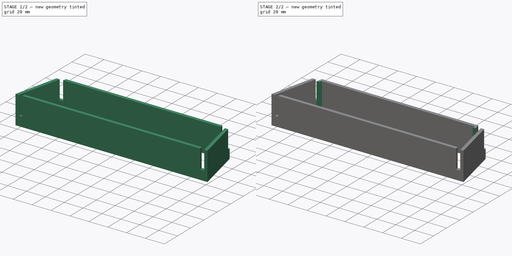
[diagram: build sequence overview — one tinted view per stage of 2, left to right]
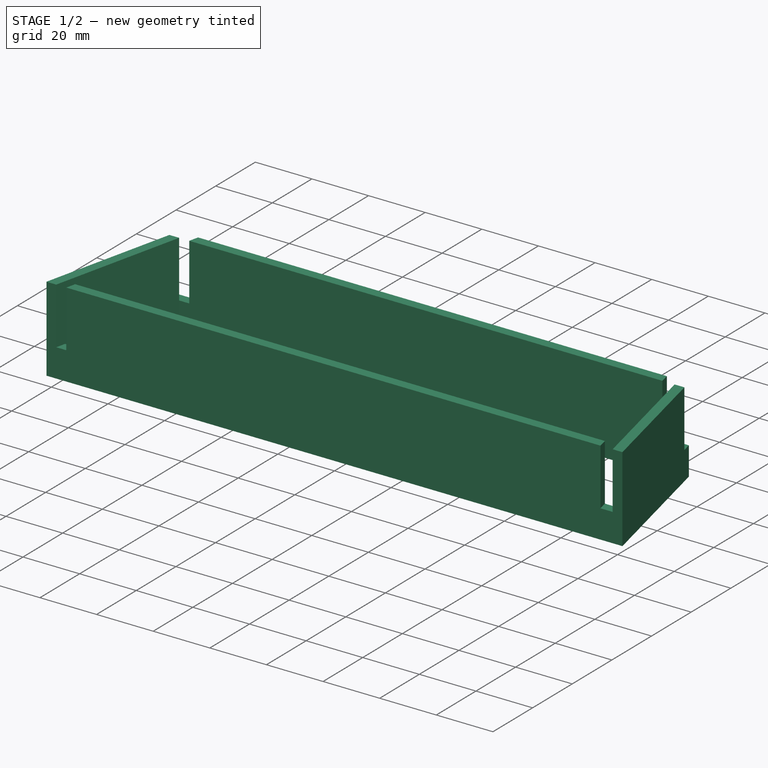
[diagram: stage 1 of 2 — iso view after this stage's code; geometry added in this stage tinted green]
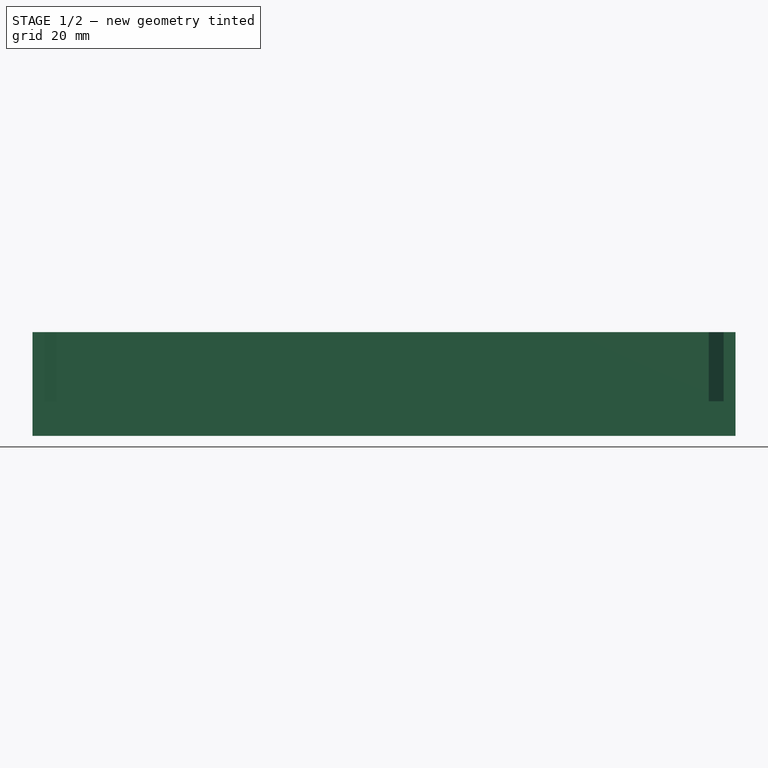
[diagram: stage 1 of 2 — front view after this stage's code; geometry added in this stage tinted green]
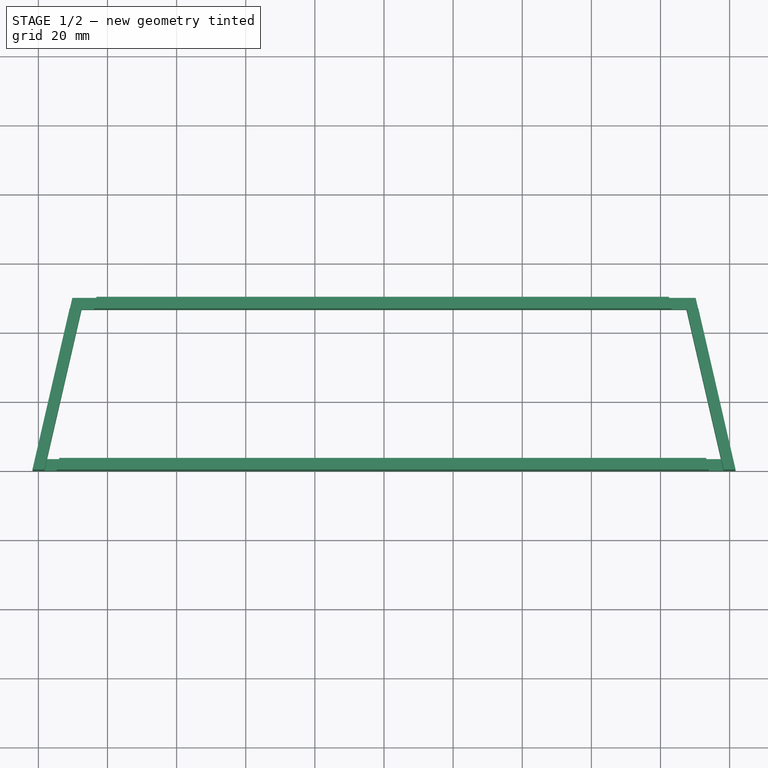
[diagram: stage 1 of 2 — top view after this stage's code; geometry added in this stage tinted green]
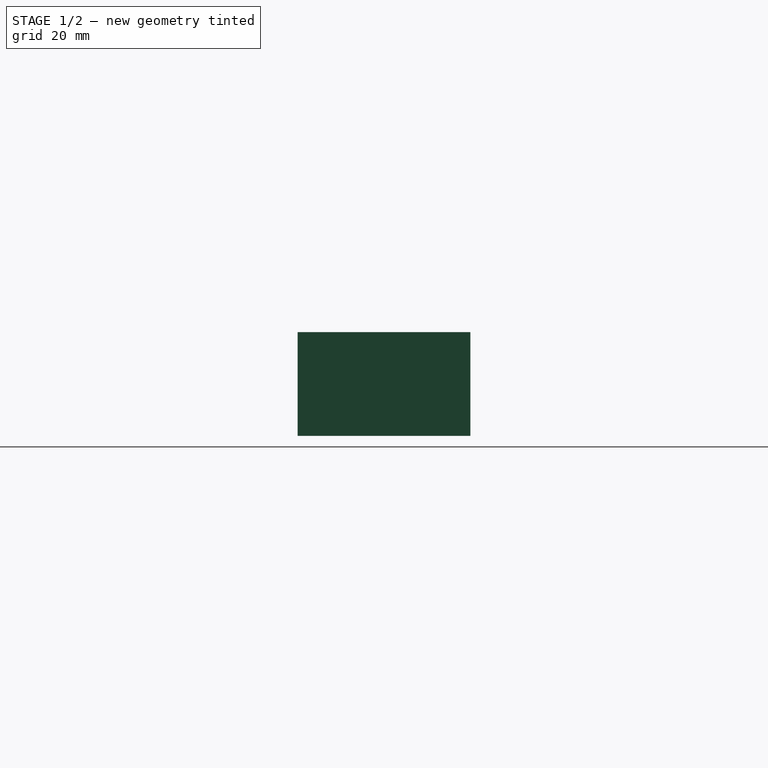
[diagram: stage 1 of 2 — right view after this stage's code; geometry added in this stage tinted green]
FCSTD DOCUMENT  (FreeCAD 1.0R39285 (Git))
Label: split-keyboard-stand-clip
License: All rights reserved
LicenseURL: https://en.wikipedia.org/wiki/All_rights_reserved
objects: Sketcher::SketchObject×3, PartDesign::Pad×2, App::VarSet×1, PartDesign::Pocket×1, PartDesign::Body×1
note: 16 computed .brp shape members not serialized (recipe doc carries the construction recipe); baked Part::Feature solids carry a one-line shape summary decoded from their .brp

FEATURE [App::VarSet] VarSet
  Base_Angle = 77
  Base_BackThickness = 10
  Base_Distance = 190
  Base_Height = 50
  Base_StandThickness = 3.36
  Base_Tolerance = 0.1
  Base_Width = 30
FEATURE [Sketcher::SketchObject] Sketch
  ArcFitTolerance = 1e-06
  AttachmentSupport = -> [XY_Plane]
  FullyConstrained = true
  MakeInternals = false
  MapMode = 5
  expr: Constraints[21] = VarSet.Base_StandThickness * 2
  expr: Constraints[25] = VarSet.Base_StandThickness * 2
  expr: Constraints[26] = VarSet.Base_StandThickness
  expr: Constraints[27] = VarSet.Base_StandThickness
  expr: Constraints[2] = VarSet.Base_Distance + VarSet.Base_StandThickness * 6
  expr: Constraints[4] = VarSet.Base_Height
  expr: Constraints[9] = VarSet.Base_Angle
  sketch-geometry (10):
    g0: LineSegment StartX=-105.08 StartY=0 StartZ=0 EndX=105.08 EndY=0 EndZ=0
    g1: LineSegment StartX=-93.5366 StartY=50 StartZ=0 EndX=93.5366 EndY=50 EndZ=0
    g2: LineSegment StartX=105.08 StartY=0 StartZ=0 EndX=93.5366 EndY=50 EndZ=0
    g3: LineSegment StartX=-93.5366 StartY=50 StartZ=0 EndX=-105.08 EndY=0 EndZ=0
    g4: LineSegment StartX=-87.4155 StartY=46.64 StartZ=0 EndX=87.4155 EndY=46.64 EndZ=0
    g5: LineSegment StartX=-97.4075 StartY=3.36 StartZ=0 EndX=97.4075 EndY=3.36 EndZ=0
    g6: LineSegment StartX=87.4155 StartY=46.64 StartZ=0 EndX=97.4075 EndY=3.36 EndZ=0
    g7: LineSegment StartX=-87.4155 StartY=46.64 StartZ=0 EndX=-97.4075 EndY=3.36 EndZ=0
    g8: LineSegment [constr] StartX=87.4155 StartY=46.64 StartZ=0 EndX=93.9633 EndY=48.1517 EndZ=0
    g9: LineSegment [constr] StartX=-87.4155 StartY=46.64 StartZ=0 EndX=-93.9633 EndY=48.1517 EndZ=0
  constraints (28):
    c: PointOnObject(g0,g-1)
    c: Symmetric(g0,g0,g-1)
    c: DistanceX(g0,g0) = 210.16
    c: Symmetric(g1,g1,g-2)
    c: Distance(g0,g1) = 50
    c: Coincident(g2,g0)
    c: Coincident(g2,g1)
    c: Coincident(g3,g1)
    c: Coincident(g3,g0)
    c: Angle(g0,g3) = 1.3439
    c: Horizontal(g4)
    c: Horizontal(g5)
    c: Coincident(g6,g4)
    c: Coincident(g6,g5)
    c: Coincident(g7,g4)
    c: Coincident(g7,g5)
    c: Parallel(g6,g2)
    c: Parallel(g7,g3)
    c: Coincident(g8,g4)
    c: PointOnObject(g8,g2)
    c: Perpendicular(g2,g8)
    c: Distance(g8,g8) = 6.72
    c: Coincident(g9,g4)
    c: PointOnObject(g9,g3)
    c: Perpendicular(g3,g9)
    c: Distance(g9,g9) = 6.72
    c: Distance(g4,g1) = 3.36
    c: Distance(g0,g5) = 3.36
FEATURE [PartDesign::Pad] Pad
  Direction = (0,0,1)
  Length = 30
  Length2 = 10
  Profile = -> Sketch
  ReferenceAxis = -> Sketch [N_Axis]
  Refine = true
  Suppressed = false
  Type = 0
FEATURE [Sketcher::SketchObject] Sketch001
  ArcFitTolerance = 1e-06
  AttachmentSupport = -> [Pad]
  ExternalGeometry = -> [Pad]
  FullyConstrained = false
  MakeInternals = false
  MapMode = 5
  Placement = pos=(0,0,30) rot=(0,0,1;0rad)
  expr: Constraints[11] = VarSet.Base_StandThickness + VarSet.Base_Tolerance
  expr: Constraints[12] = VarSet.Base_StandThickness + VarSet.Base_Tolerance
  sketch-geometry (16):
    g0: LineSegment StartX=-94.7206 StartY=0 StartZ=0 EndX=-83.1772 EndY=50 EndZ=0
    g1: LineSegment StartX=82.4166 StartY=50 StartZ=0 EndX=93.96 EndY=0 EndZ=0
    g2: LineSegment StartX=-86.7282 StartY=50 StartZ=0 EndX=-83.1772 EndY=50 EndZ=0
    g3: LineSegment StartX=-98.273 StartY=-0.00607872 StartZ=0 EndX=-94.7206 EndY=0 EndZ=0
    g4: LineSegment StartX=-87.5039 StartY=46.64 StartZ=0 EndX=-98.273 EndY=-0.00607872 EndZ=0
    g5: LineSegment [constr] StartX=-88.9489 StartY=25 StartZ=0 EndX=-92.3202 EndY=25.7783 EndZ=0
    g6: LineSegment [constr] StartX=88.1883 StartY=25 StartZ=0 EndX=91.5596 EndY=25.7783 EndZ=0
    g7: GeomPoint X=-87.5039 Y=46.64 Z=0
    g8: LineSegment StartX=-86.7282 StartY=50 StartZ=0 EndX=-90.1766 EndY=50 EndZ=0
    g9: LineSegment StartX=-87.5039 StartY=46.64 StartZ=0 EndX=-90.9523 EndY=46.64 EndZ=0
    g10: LineSegment StartX=-90.9523 StartY=46.64 StartZ=0 EndX=-90.1766 EndY=50 EndZ=0
    g11: LineSegment StartX=82.4166 StartY=50 StartZ=0 EndX=90.1766 EndY=50 EndZ=0
    g12: LineSegment StartX=87.5039 StartY=46.64 StartZ=0 EndX=90.9523 EndY=46.64 EndZ=0
    g13: LineSegment StartX=90.1766 StartY=50 StartZ=0 EndX=90.9523 EndY=46.64 EndZ=0
    g14: LineSegment StartX=87.5039 StartY=46.64 StartZ=0 EndX=98.2716 EndY=0 EndZ=0
    g15: LineSegment StartX=98.2716 StartY=0 StartZ=0 EndX=93.96 EndY=0 EndZ=0
  constraints (41):
    c: PointOnObject(g0,g-3)
    c: Coincident(g2,g0)
    c: Coincident(g3,g0)
    c: PointOnObject(g2,g-4)
    c: PointOnObject(g3,g-4)
    c: PointOnObject(g2,g-3)
    c: Symmetric(g0,g0,g5)
    c: PointOnObject(g5,g4)
    c: Perpendicular(g0,g5)
    c: Symmetric(g1,g1,g6)
    c: Perpendicular(g1,g6)
    c: Distance(g5,g5) = 3.46
    c: Distance(g6,g6) = 3.46
    c: Parallel(g4,g0)
    c: Coincident(g7,g-4)
    c: Coincident(g8,g2)
    c: Coincident(g8,g-6)
    c: Coincident(g9,g7)
    c: PointOnObject(g9,g-6)
    c: Horizontal(g9)
    c: Coincident(g10,g9)
    c: Coincident(g10,g8)
    c: Coincident(g4,g3)
    c: Coincident(g7,g4)
    c: DistanceX(g1,g-7) = 7.76
    c: DistanceX(g1,g-7) = 7.76
    c: Coincident(g11,g1)
    c: Coincident(g11,g-7)
    c: Horizontal(g11)
    c: Coincident(g12,g-5)
    c: PointOnObject(g12,g-7)
    c: Horizontal(g12)
    c: Coincident(g13,g11)
    c: Coincident(g13,g12)
    c: Coincident(g14,g12)
    c: PointOnObject(g14,g-1)
    c: Coincident(g15,g14)
    c: Coincident(g15,g1)
    c: Horizontal(g15)
    c: Tangent(g14,g-5)
    c: PointOnObject(g0,g-1)
FEATURE [PartDesign::Pocket] Pocket
  BaseFeature = -> Pad
  Direction = (0,0,-1)
  Length = 20
  Length2 = 5
  Profile = -> Sketch001
  ReferenceAxis = -> Sketch001 [N_Axis]
  Refine = true
  Suppressed = false
  Type = 0
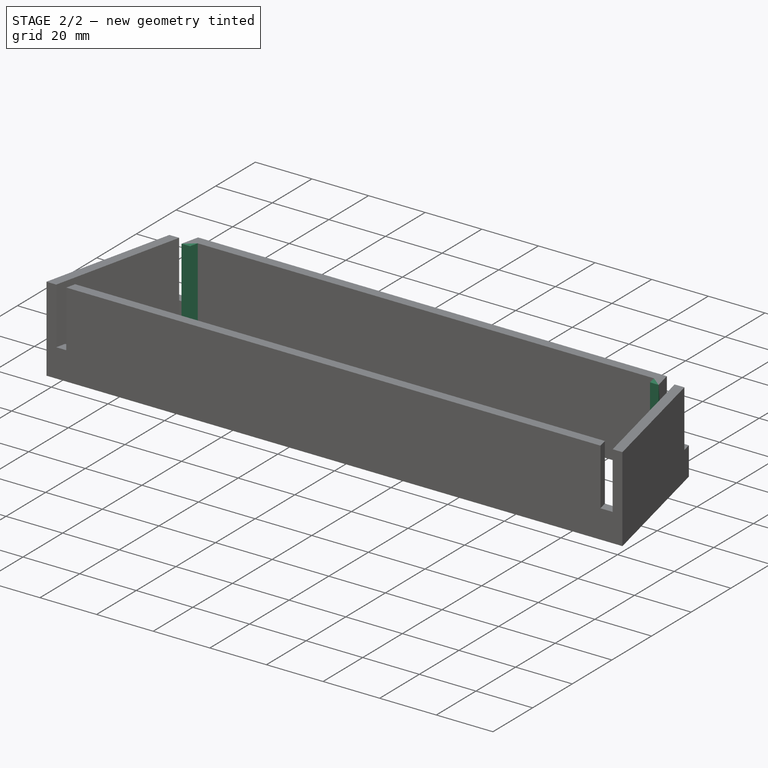
[diagram: stage 2 of 2 — iso view after this stage's code; geometry added in this stage tinted green]
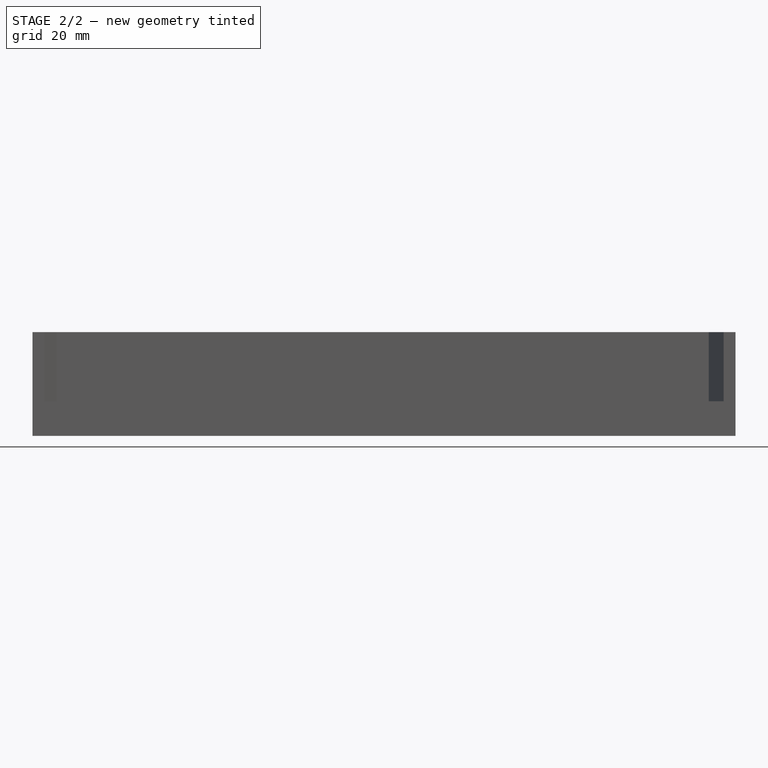
[diagram: stage 2 of 2 — front view after this stage's code; geometry added in this stage tinted green]
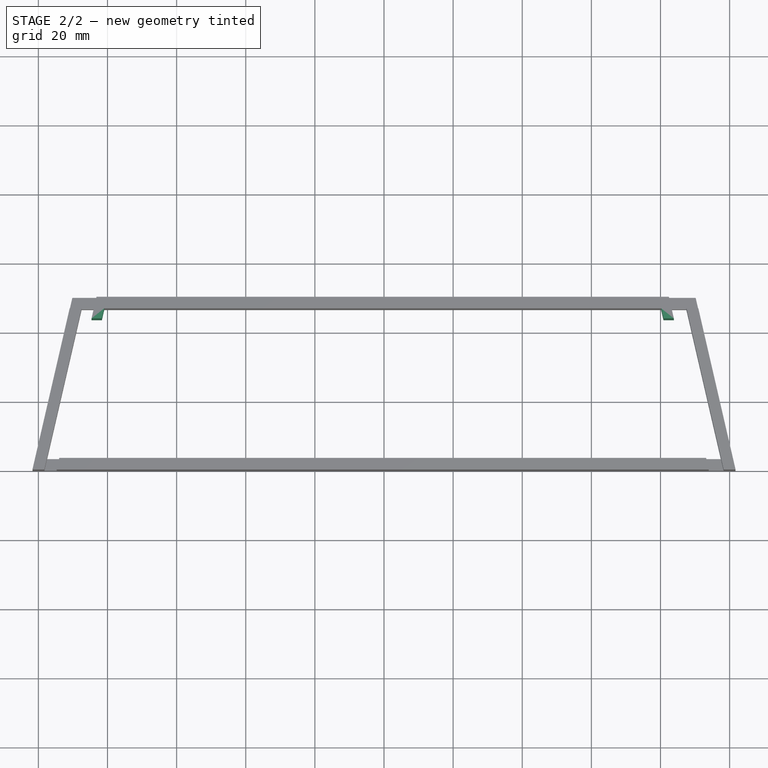
[diagram: stage 2 of 2 — top view after this stage's code; geometry added in this stage tinted green]
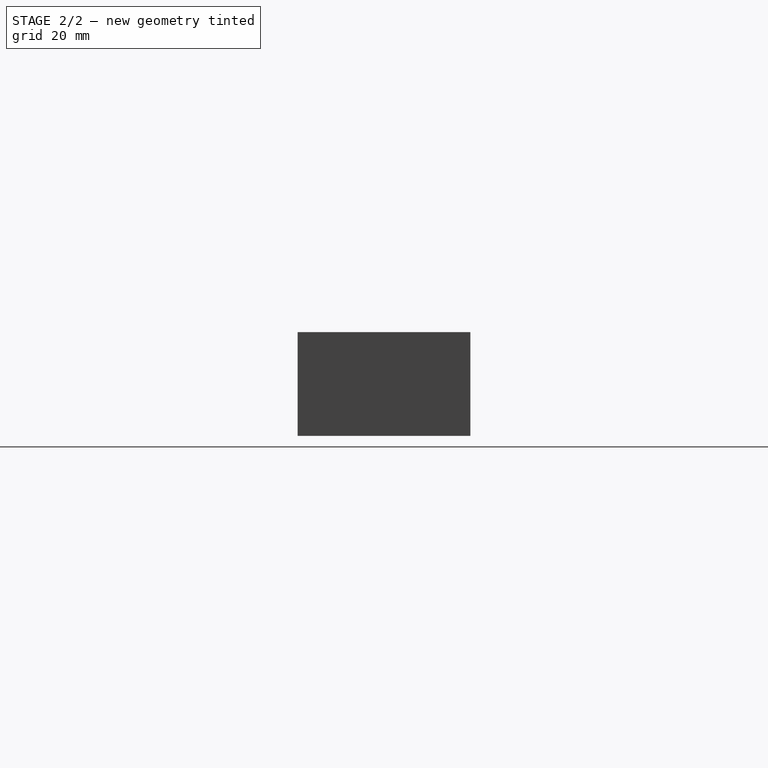
[diagram: stage 2 of 2 — right view after this stage's code; geometry added in this stage tinted green]
FEATURE [Sketcher::SketchObject] Sketch002
  ArcFitTolerance = 1e-06
  AttachmentSupport = -> [Pocket]
  ExternalGeometry = -> [Pocket]
  FullyConstrained = true
  MakeInternals = false
  MapMode = 5
  Placement = pos=(0,0,30) rot=(0,0,1;0rad)
  sketch-geometry (8):
    g0: LineSegment StartX=-83.9529 StartY=46.64 StartZ=0 EndX=-84.6278 EndY=43.7169 EndZ=0
    g1: LineSegment StartX=-84.6278 StartY=43.7169 StartZ=0 EndX=-81.6278 EndY=43.7169 EndZ=0
    g2: LineSegment StartX=-81.6278 StartY=43.7169 StartZ=0 EndX=-80.9529 EndY=46.64 EndZ=0
    g3: LineSegment StartX=-80.9529 StartY=46.64 StartZ=0 EndX=-83.9529 EndY=46.64 EndZ=0
    g4: LineSegment StartX=83.1923 StartY=46.64 StartZ=0 EndX=83.8672 EndY=43.7169 EndZ=0
    g5: LineSegment StartX=83.8672 StartY=43.7169 StartZ=0 EndX=80.8672 EndY=43.7169 EndZ=0
    g6: LineSegment StartX=80.8672 StartY=43.7169 StartZ=0 EndX=80.1923 EndY=46.64 EndZ=0
    g7: LineSegment StartX=80.1923 StartY=46.64 StartZ=0 EndX=83.1923 EndY=46.64 EndZ=0
  constraints (22):
    c: Distance(g0) = 3
    c: Coincident(g0,g-3)
    c: Parallel(g0,g-3)
    c: Distance(g1) = 3
    c: Coincident(g1,g0)
    c: Horizontal(g1)
    c: Coincident(g2,g1)
    c: PointOnObject(g2,g-4)
    c: Coincident(g3,g2)
    c: Coincident(g3,g0)
    c: Parallel(g2,g-3)
    c: Distance(g4) = 3
    c: Coincident(g4,g-5)
    c: Parallel(g4,g-5)
    c: Distance(g5) = 3
    c: Coincident(g5,g4)
    c: Horizontal(g5)
    c: Coincident(g6,g5)
    c: PointOnObject(g6,g-4)
    c: Coincident(g7,g6)
    c: Coincident(g7,g4)
    c: Parallel(g6,g-5)
FEATURE [PartDesign::Pad] Pad001
  BaseFeature = -> Pocket
  Direction = (0,0,1)
  Length = 30
  Length2 = 10
  Profile = -> Sketch002
  ReferenceAxis = -> Sketch002 [N_Axis]
  Refine = true
  Reversed = true
  Suppressed = false
  Type = 0
  UseCustomVector = true
  expr: Length = VarSet.Base_Width
FEATURE [PartDesign::Body] Body
  AllowCompound = false
  Group = -> [Sketch,Pad,Sketch001,Pocket,Sketch002,Pad001]
  Origin = -> Origin
  Tip = -> Pad001
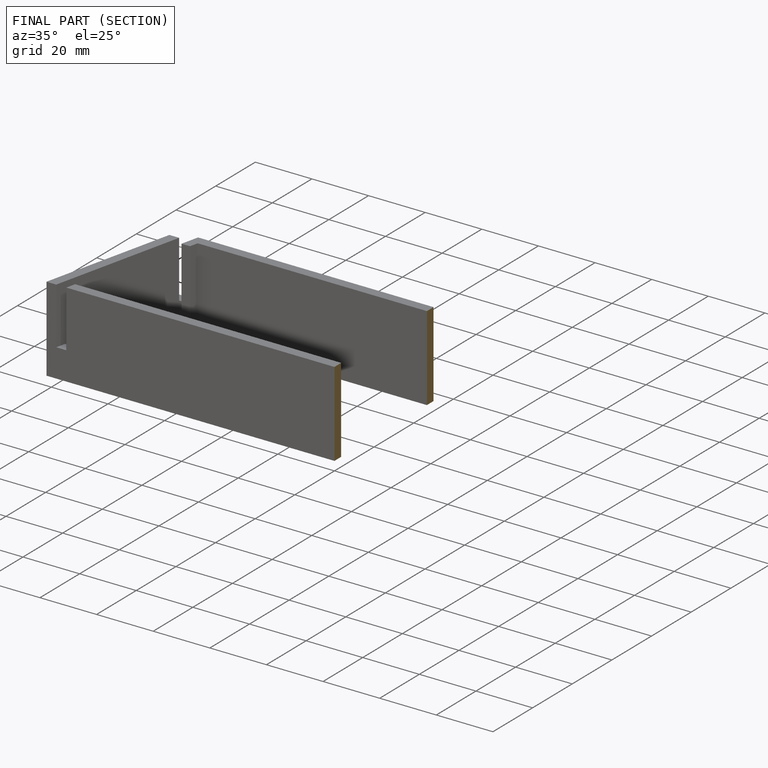
[diagram: finished part — half-section view (interior)]
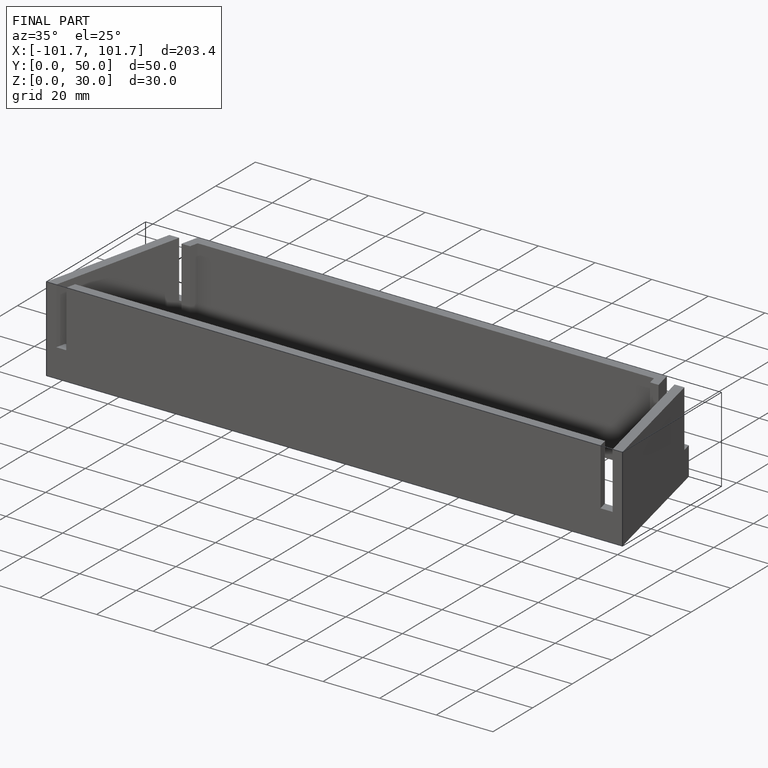
[diagram: finished part — iso view with bounding-box wireframe]
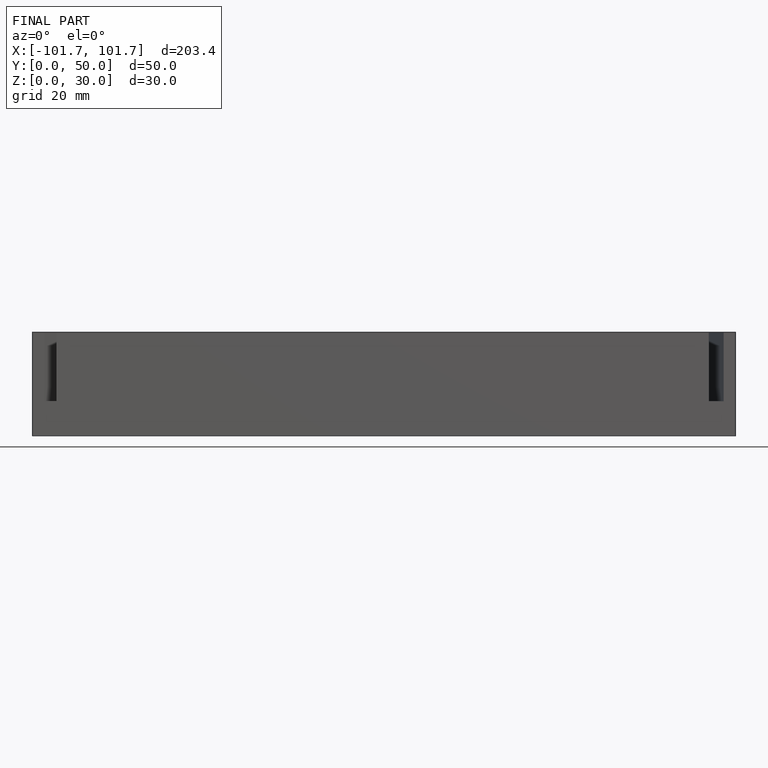
[diagram: finished part — front view with bounding-box wireframe]
